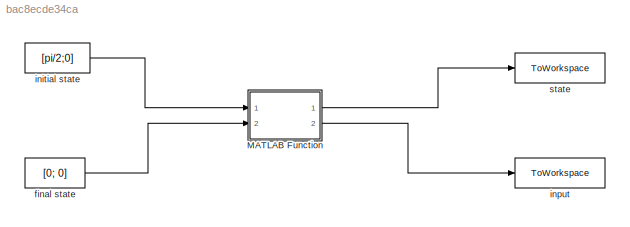
MODEL slx_bac8ecde34ca
KIND model
CONFIG AbsTol = auto
CONFIG EnableMultiTasking = off
CONFIG FixedStep = 1
CONFIG MaxStep = auto
CONFIG MinStep = auto
CONFIG RelTol = 1e-3
CONFIG SampleTimeConstraint = Unconstrained
CONFIG SolverName = FixedStepAuto
CONFIG StartTime = 0.0
CONFIG StopTime = 0.5
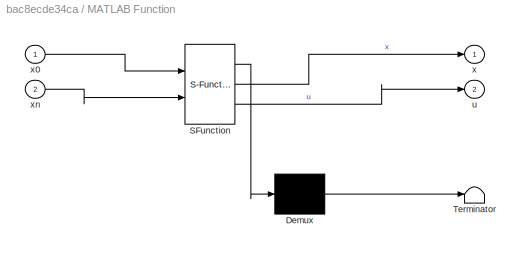
BLOCK [SubSystem] MATLAB Function
  ErrorFcn = Stateflow.Translate.translate
  PermitHierarchicalResolution = ExplicitOnly
  Ports = [2, 2]
  RequestExecContextInheritance = off
  SFBlockType = MATLAB Function
  TreatAsAtomicUnit = on
BLOCK [Demux] MATLAB Function/ Demux 
  Outputs = 1
  Ports = [1, 1]
BLOCK [S-Function] MATLAB Function/ SFunction 
  EnableBusSupport = on
  FunctionName = sf_sfun
  PortCounts = [2 3]
  Ports = [2, 3]
  SFcnIsStateOwnerBlock = off
  SFunctionDeploymentMode = off
  Tag = Stateflow S-Function 2
BLOCK [Terminator] MATLAB Function/ Terminator 
BLOCK [Outport] MATLAB Function/u
  Port = 2
BLOCK [Outport] MATLAB Function/x
BLOCK [Inport] MATLAB Function/x0
BLOCK [Inport] MATLAB Function/xn
  Port = 2
BLOCK [Constant] final state
  Value = [0; 0]
BLOCK [Constant] initial state
  Value = [pi/2;0]
BLOCK [ToWorkspace] input
  FixptAsFi = on
  MaxDataPoints = inf
  Ports = [1]
  SampleTime = -1
  SaveFormat = Timeseries
  VariableName = u
BLOCK [ToWorkspace] state
  FixptAsFi = on
  MaxDataPoints = inf
  Ports = [1]
  SampleTime = -1
  SaveFormat = Timeseries
  VariableName = x
LINE MATLAB Function:1 -> state:1
LINE MATLAB Function:2 -> input:1
LINE final state:1 -> MATLAB Function:2
LINE initial state:1 -> MATLAB Function:1
CHART MATLAB Function states=1 transitions=1
  STATE_LABEL 'eML_blk_kernel()'
  STATE_LABEL "SCRIPT:\nfunction [x, u] = fcn(x0, xn)\n\n\nT       = 100;              % horizon\nu0      = 10*randn(1,T);    % initial controls\n\n%---------------------- user-adjustable parameters ------------------------\ndefaults = {'lims',           [0,0],...            %control limits\n            'parallel',       true,...          %use parallel line-search?\n            'Alpha',          10.^linspace(0,-3,11),... ...<+3608ch>"
CHART  states=0 transitions=0
